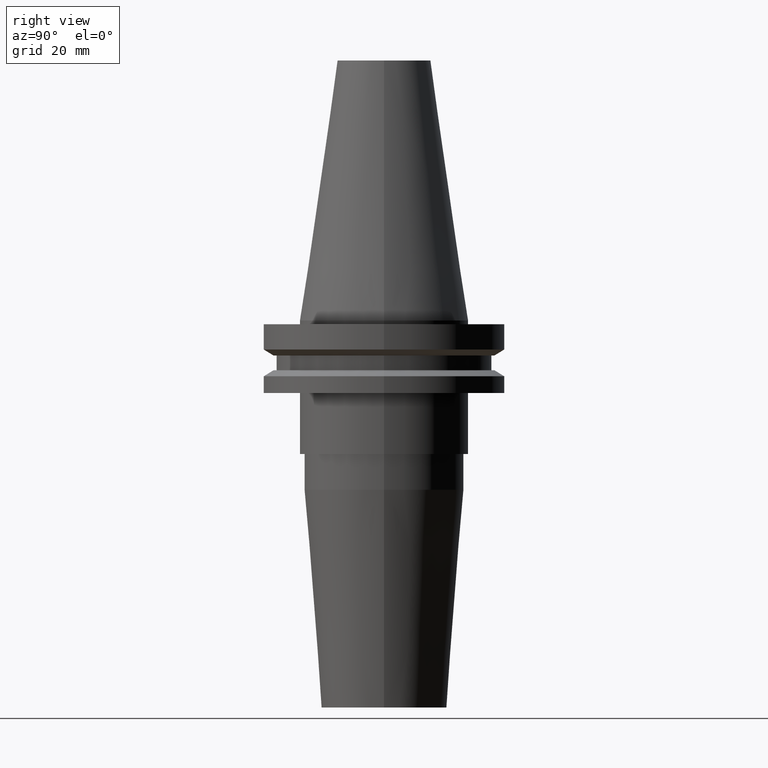
[diagram: clean part render]
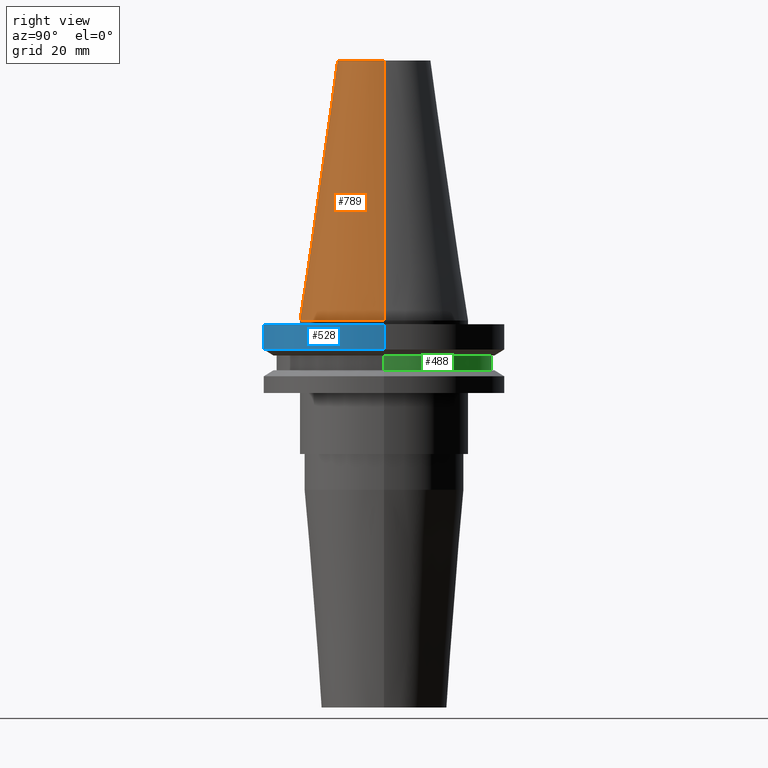
[diagram: same view with three faces highlighted in distinct colors, each labeled with its STEP entity id]
A machine part, right view with three faces highlighted in distinct colors.
Their STEP definitions:

[orange] entity #789 — the highlighted conical surface has half-angle 8.297 deg.
#18 = VECTOR ( 'NONE', #352, 999.9999999999998863 ) ;
#30 = VERTEX_POINT ( 'NONE', #181 ) ;
#48 = DIRECTION ( 'NONE',  ( 0.000000000000000000, 0.000000000000000000, -1.000000000000000000 ) ) ;
#75 = CARTESIAN_POINT ( 'NONE',  ( -12.27178102086201150, 0.000000000000000000, 68.25000000000000000 ) ) ;
#87 = AXIS2_PLACEMENT_3D ( 'NONE', #732, #791, #598 ) ;
#120 = EDGE_CURVE ( 'NONE', #300, #646, #431, .T. ) ;
#163 = DIRECTION ( 'NONE',  ( 0.1443082272672999711, 1.767266086135276757E-17, -0.9895327864921755756 ) ) ;
#181 = CARTESIAN_POINT ( 'NONE',  ( 12.27178102086201150, 2.112318622904291439E-15, 68.25000000000000000 ) ) ;
#182 = ORIENTED_EDGE ( 'NONE', *, *, #291, .T. ) ;
#183 = VECTOR ( 'NONE', #163, 999.9999999999998863 ) ;
#213 = DIRECTION ( 'NONE',  ( 1.000000000000000000, 0.000000000000000000, 0.000000000000000000 ) ) ;
#255 = AXIS2_PLACEMENT_3D ( 'NONE', #589, #48, #331 ) ;
#291 = EDGE_CURVE ( 'NONE', #628, #300, #484, .T. ) ;
#300 = VERTEX_POINT ( 'NONE', #500 ) ;
#331 = DIRECTION ( 'NONE',  ( -1.000000000000000000, 0.000000000000000000, 0.000000000000000000 ) ) ;
#335 = FACE_OUTER_BOUND ( 'NONE', #625, .T. ) ;
#352 = DIRECTION ( 'NONE',  ( -0.1443082272672999711, 0.000000000000000000, -0.9895327864921755756 ) ) ;
#369 = EDGE_CURVE ( 'NONE', #30, #646, #433, .T. ) ;
#431 = CIRCLE ( 'NONE', #755, 22.22500000000000142 ) ;
#433 = LINE ( 'NONE', #744, #183 ) ;
#484 = LINE ( 'NONE', #683, #18 ) ;
#500 = CARTESIAN_POINT ( 'NONE',  ( -22.22500000000000142, 0.000000000000000000, 0.000000000000000000 ) ) ;
#589 = CARTESIAN_POINT ( 'NONE',  ( 0.000000000000000000, 0.000000000000000000, 0.000000000000000000 ) ) ;
#598 = DIRECTION ( 'NONE',  ( 1.000000000000000000, 0.000000000000000000, 0.000000000000000000 ) ) ;
#625 = EDGE_LOOP ( 'NONE', ( #850, #687, #182, #819 ) ) ;
#628 = VERTEX_POINT ( 'NONE', #75 ) ;
#646 = VERTEX_POINT ( 'NONE', #778 ) ;
#667 = EDGE_CURVE ( 'NONE', #628, #30, #822, .T. ) ;
#683 = CARTESIAN_POINT ( 'NONE',  ( -22.22500000000000142, 0.000000000000000000, 0.000000000000000000 ) ) ;
#687 = ORIENTED_EDGE ( 'NONE', *, *, #667, .F. ) ;
#720 = DIRECTION ( 'NONE',  ( -0.000000000000000000, -0.000000000000000000, 1.000000000000000000 ) ) ;
#732 = CARTESIAN_POINT ( 'NONE',  ( 0.000000000000000000, 0.000000000000000000, 68.25000000000000000 ) ) ;
#733 = CARTESIAN_POINT ( 'NONE',  ( 0.000000000000000000, 0.000000000000000000, 0.000000000000000000 ) ) ;
#744 = CARTESIAN_POINT ( 'NONE',  ( 22.22500000000000142, 2.721777511104992849E-15, 0.000000000000000000 ) ) ;
#755 = AXIS2_PLACEMENT_3D ( 'NONE', #733, #720, #213 ) ;
#778 = CARTESIAN_POINT ( 'NONE',  ( 22.22500000000000142, 2.721777511104992849E-15, 0.000000000000000000 ) ) ;
#789 = ADVANCED_FACE ( 'NONE', ( #335 ), #854, .T. ) ;
#791 = DIRECTION ( 'NONE',  ( -0.000000000000000000, -0.000000000000000000, 1.000000000000000000 ) ) ;
#819 = ORIENTED_EDGE ( 'NONE', *, *, #120, .T. ) ;
#822 = CIRCLE ( 'NONE', #87, 12.27178102086201150 ) ;
#850 = ORIENTED_EDGE ( 'NONE', *, *, #369, .F. ) ;
#854 = CONICAL_SURFACE ( 'NONE', #255, 22.22500000000000142, 0.1448138465474119174 ) ;

[blue] entity #528 — the highlighted cylindrical surface (partial cylindrical patch) has radius 31.75 mm, axis along (-0, -0, 1).
#38 = CARTESIAN_POINT ( 'NONE',  ( 0.000000000000000000, 0.000000000000000000, -1.000000000000000888 ) ) ;
#65 = EDGE_CURVE ( 'NONE', #846, #288, #217, .T. ) ;
#111 = VECTOR ( 'NONE', #193, 1000.000000000000000 ) ;
#112 = AXIS2_PLACEMENT_3D ( 'NONE', #38, #328, #311 ) ;
#113 = DIRECTION ( 'NONE',  ( 1.000000000000000000, 0.000000000000000000, 0.000000000000000000 ) ) ;
#160 = CIRCLE ( 'NONE', #487, 31.75000000000000000 ) ;
#193 = DIRECTION ( 'NONE',  ( -0.000000000000000000, -0.000000000000000000, 1.000000000000000000 ) ) ;
#217 = CIRCLE ( 'NONE', #112, 31.75000000000000000 ) ;
#231 = CARTESIAN_POINT ( 'NONE',  ( 31.75000000000000000, 0.000000000000000000, -7.605276606597335842 ) ) ;
#235 = CARTESIAN_POINT ( 'NONE',  ( 0.000000000000000000, 0.000000000000000000, -7.605276606597335842 ) ) ;
#242 = CARTESIAN_POINT ( 'NONE',  ( -31.75000000000000000, 3.888253587292846476E-15, -1.000000000000000888 ) ) ;
#276 = EDGE_CURVE ( 'NONE', #663, #846, #592, .T. ) ;
#288 = VERTEX_POINT ( 'NONE', #426 ) ;
#290 = CARTESIAN_POINT ( 'NONE',  ( -31.75000000000000000, 3.888253587292846476E-15, 68.25000000000000000 ) ) ;
#303 = ORIENTED_EDGE ( 'NONE', *, *, #65, .F. ) ;
#304 = DIRECTION ( 'NONE',  ( 1.000000000000000000, 0.000000000000000000, 0.000000000000000000 ) ) ;
#309 = FACE_OUTER_BOUND ( 'NONE', #492, .T. ) ;
#311 = DIRECTION ( 'NONE',  ( 1.000000000000000000, 0.000000000000000000, 0.000000000000000000 ) ) ;
#328 = DIRECTION ( 'NONE',  ( -0.000000000000000000, -0.000000000000000000, 1.000000000000000000 ) ) ;
#342 = EDGE_CURVE ( 'NONE', #663, #843, #160, .T. ) ;
#403 = AXIS2_PLACEMENT_3D ( 'NONE', #841, #643, #113 ) ;
#418 = DIRECTION ( 'NONE',  ( -0.000000000000000000, -0.000000000000000000, 1.000000000000000000 ) ) ;
#422 = ORIENTED_EDGE ( 'NONE', *, *, #276, .F. ) ;
#426 = CARTESIAN_POINT ( 'NONE',  ( 31.75000000000000000, 0.000000000000000000, -1.000000000000000888 ) ) ;
#487 = AXIS2_PLACEMENT_3D ( 'NONE', #235, #490, #304 ) ;
#490 = DIRECTION ( 'NONE',  ( -0.000000000000000000, -0.000000000000000000, 1.000000000000000000 ) ) ;
#492 = EDGE_LOOP ( 'NONE', ( #422, #630, #499, #303 ) ) ;
#499 = ORIENTED_EDGE ( 'NONE', *, *, #826, .T. ) ;
#528 = ADVANCED_FACE ( 'NONE', ( #309 ), #572, .T. ) ;
#572 = CYLINDRICAL_SURFACE ( 'NONE', #403, 31.75000000000000000 ) ;
#578 = LINE ( 'NONE', #840, #111 ) ;
#592 = LINE ( 'NONE', #290, #604 ) ;
#604 = VECTOR ( 'NONE', #418, 1000.000000000000000 ) ;
#630 = ORIENTED_EDGE ( 'NONE', *, *, #342, .T. ) ;
#643 = DIRECTION ( 'NONE',  ( -0.000000000000000000, -0.000000000000000000, 1.000000000000000000 ) ) ;
#663 = VERTEX_POINT ( 'NONE', #719 ) ;
#719 = CARTESIAN_POINT ( 'NONE',  ( -31.75000000000000000, 3.888253587292846476E-15, -7.605276606597335842 ) ) ;
#826 = EDGE_CURVE ( 'NONE', #843, #288, #578, .T. ) ;
#840 = CARTESIAN_POINT ( 'NONE',  ( 31.75000000000000000, 0.000000000000000000, 68.25000000000000000 ) ) ;
#841 = CARTESIAN_POINT ( 'NONE',  ( 0.000000000000000000, 0.000000000000000000, 68.25000000000000000 ) ) ;
#843 = VERTEX_POINT ( 'NONE', #231 ) ;
#846 = VERTEX_POINT ( 'NONE', #242 ) ;

[green] entity #488 — the highlighted cylindrical surface (partial cylindrical patch) has radius 28.18 mm, axis along (-0, -0, 1).
#13 = AXIS2_PLACEMENT_3D ( 'NONE', #109, #768, #828 ) ;
#15 = DIRECTION ( 'NONE',  ( 1.000000000000000000, 0.000000000000000000, 0.000000000000000000 ) ) ;
#41 = CIRCLE ( 'NONE', #396, 28.17999999999999972 ) ;
#47 = VERTEX_POINT ( 'NONE', #770 ) ;
#62 = ORIENTED_EDGE ( 'NONE', *, *, #446, .T. ) ;
#85 = CARTESIAN_POINT ( 'NONE',  ( 0.000000000000000000, 0.000000000000000000, -9.204999999999991189 ) ) ;
#109 = CARTESIAN_POINT ( 'NONE',  ( 0.000000000000000000, 0.000000000000000000, -13.05499999999999794 ) ) ;
#122 = DIRECTION ( 'NONE',  ( 1.000000000000000000, 0.000000000000000000, 0.000000000000000000 ) ) ;
#126 = CIRCLE ( 'NONE', #13, 28.17999999999999972 ) ;
#156 = EDGE_LOOP ( 'NONE', ( #763, #62, #251, #653 ) ) ;
#169 = VECTOR ( 'NONE', #368, 1000.000000000000000 ) ;
#179 = VERTEX_POINT ( 'NONE', #340 ) ;
#190 = LINE ( 'NONE', #437, #169 ) ;
#237 = VERTEX_POINT ( 'NONE', #678 ) ;
#251 = ORIENTED_EDGE ( 'NONE', *, *, #262, .F. ) ;
#262 = EDGE_CURVE ( 'NONE', #237, #179, #41, .T. ) ;
#283 = EDGE_CURVE ( 'NONE', #47, #237, #619, .T. ) ;
#327 = FACE_OUTER_BOUND ( 'NONE', #156, .T. ) ;
#340 = CARTESIAN_POINT ( 'NONE',  ( -28.17999999999999972, 3.451054679997241634E-15, -9.204999999999991189 ) ) ;
#350 = DIRECTION ( 'NONE',  ( -0.000000000000000000, -0.000000000000000000, 1.000000000000000000 ) ) ;
#356 = CARTESIAN_POINT ( 'NONE',  ( -28.17999999999999972, 3.451054679997241634E-15, -13.05499999999999794 ) ) ;
#368 = DIRECTION ( 'NONE',  ( -0.000000000000000000, -0.000000000000000000, 1.000000000000000000 ) ) ;
#396 = AXIS2_PLACEMENT_3D ( 'NONE', #85, #350, #15 ) ;
#407 = VERTEX_POINT ( 'NONE', #356 ) ;
#437 = CARTESIAN_POINT ( 'NONE',  ( -28.17999999999999972, 3.451054679997241634E-15, 68.25000000000000000 ) ) ;
#446 = EDGE_CURVE ( 'NONE', #407, #179, #190, .T. ) ;
#488 = ADVANCED_FACE ( 'NONE', ( #327 ), #774, .T. ) ;
#495 = EDGE_CURVE ( 'NONE', #47, #407, #126, .T. ) ;
#504 = DIRECTION ( 'NONE',  ( -0.000000000000000000, -0.000000000000000000, 1.000000000000000000 ) ) ;
#513 = CARTESIAN_POINT ( 'NONE',  ( 0.000000000000000000, 0.000000000000000000, 68.25000000000000000 ) ) ;
#568 = VECTOR ( 'NONE', #806, 1000.000000000000000 ) ;
#619 = LINE ( 'NONE', #824, #568 ) ;
#653 = ORIENTED_EDGE ( 'NONE', *, *, #283, .F. ) ;
#666 = AXIS2_PLACEMENT_3D ( 'NONE', #513, #504, #122 ) ;
#678 = CARTESIAN_POINT ( 'NONE',  ( 28.17999999999999972, 0.000000000000000000, -9.204999999999991189 ) ) ;
#763 = ORIENTED_EDGE ( 'NONE', *, *, #495, .T. ) ;
#768 = DIRECTION ( 'NONE',  ( -0.000000000000000000, -0.000000000000000000, 1.000000000000000000 ) ) ;
#770 = CARTESIAN_POINT ( 'NONE',  ( 28.17999999999999972, 0.000000000000000000, -13.05499999999999794 ) ) ;
#774 = CYLINDRICAL_SURFACE ( 'NONE', #666, 28.17999999999999972 ) ;
#806 = DIRECTION ( 'NONE',  ( -0.000000000000000000, -0.000000000000000000, 1.000000000000000000 ) ) ;
#824 = CARTESIAN_POINT ( 'NONE',  ( 28.17999999999999972, 0.000000000000000000, 68.25000000000000000 ) ) ;
#828 = DIRECTION ( 'NONE',  ( 1.000000000000000000, 0.000000000000000000, 0.000000000000000000 ) ) ;